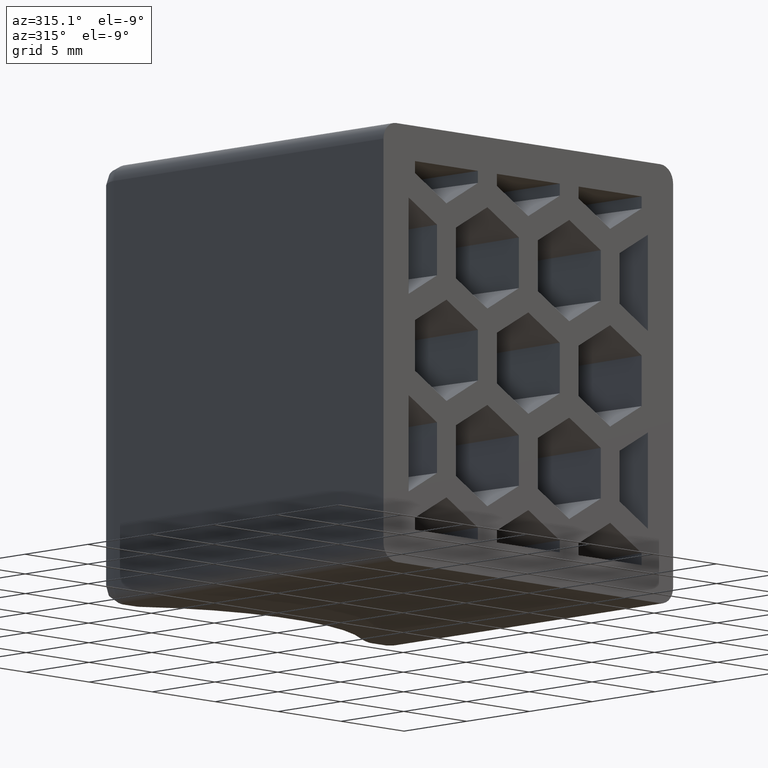
[diagram: clean part render]
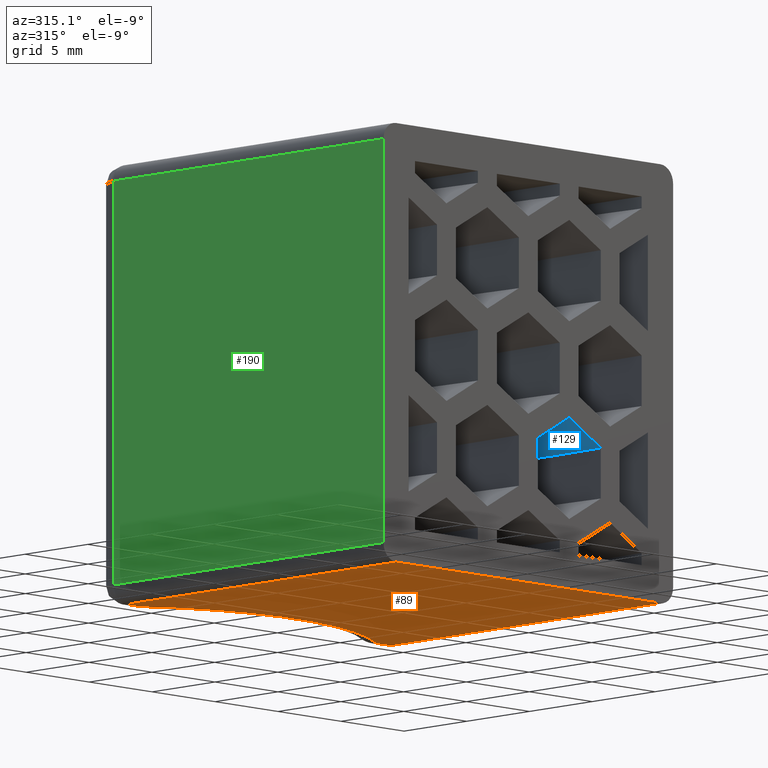
[diagram: same view with three faces highlighted in distinct colors, each labeled with its STEP entity id]
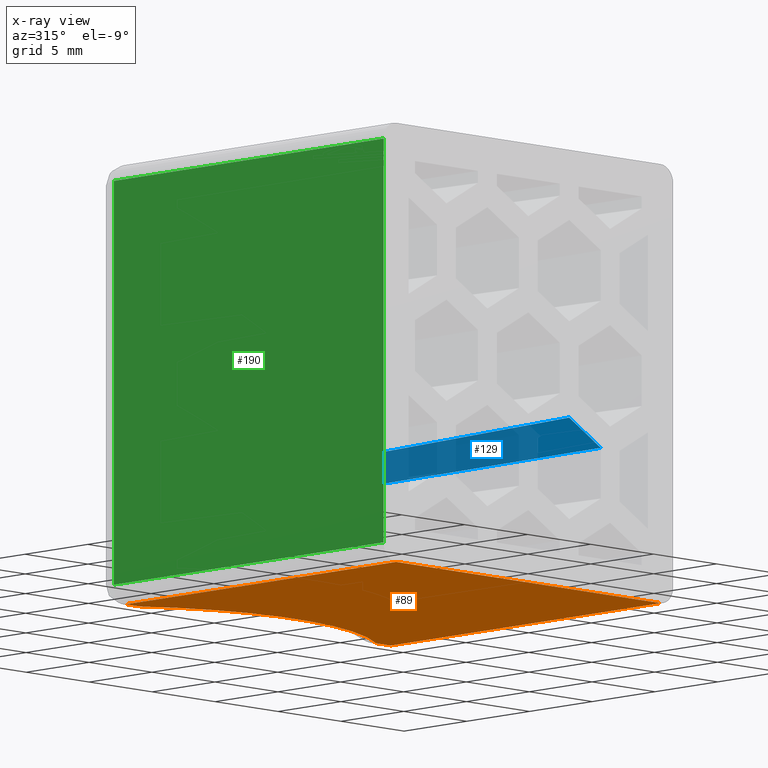
[diagram: x-ray of the same camera — body ghosted, the three highlighted faces saturated]
A machine part, auxiliary view with three faces highlighted in distinct colors.
The next image is the same camera in x-ray (body ghosted, the three faces saturated) — at least one of them is partly hidden behind the body in this view.
Their STEP definitions:

[orange] entity #89 — the highlighted planar face has unit normal (0, 0, -1).
#89 = ADVANCED_FACE( '', ( #294 ), #295, .T. );
#294 = FACE_OUTER_BOUND( '', #784, .T. );
#295 = PLANE( '', #785 );
#784 = EDGE_LOOP( '', ( #1708, #1709, #1710, #1711, #1712, #1713 ) );
#785 = AXIS2_PLACEMENT_3D( '', #1714, #1715, #1716 );
#1708 = ORIENTED_EDGE( '', *, *, #2950, .T. );
#1709 = ORIENTED_EDGE( '', *, *, #2948, .T. );
#1710 = ORIENTED_EDGE( '', *, *, #2951, .T. );
#1711 = ORIENTED_EDGE( '', *, *, #2952, .T. );
#1712 = ORIENTED_EDGE( '', *, *, #2953, .T. );
#1713 = ORIENTED_EDGE( '', *, *, #2884, .F. );
#1714 = CARTESIAN_POINT( '', ( 0.000000000000000, 34.5400000000000, -12.5000000000000 ) );
#1715 = DIRECTION( '', ( 0.000000000000000, 0.000000000000000, -1.00000000000000 ) );
#1716 = DIRECTION( '', ( 0.000000000000000, 1.00000000000000, 0.000000000000000 ) );
#2884 = EDGE_CURVE( '', #3380, #3381, #3382, .T. );
#2948 = EDGE_CURVE( '', #3493, #3497, #3499, .F. );
#2950 = EDGE_CURVE( '', #3380, #3493, #3501, .F. );
#2951 = EDGE_CURVE( '', #3497, #3502, #3503, .F. );
#2952 = EDGE_CURVE( '', #3502, #3504, #3505, .F. );
#2953 = EDGE_CURVE( '', #3504, #3381, #3506, .F. );
#3380 = VERTEX_POINT( '', #4140 );
#3381 = VERTEX_POINT( '', #4141 );
#3382 = LINE( '', #4142, #4143 );
#3493 = VERTEX_POINT( '', #4303 );
#3497 = VERTEX_POINT( '', #4307 );
#3499 = LINE( '', #4309, #4310 );
#3501 = LINE( '', #4313, #4314 );
#3502 = VERTEX_POINT( '', #4315 );
#3503 = CIRCLE( '', #4316, 16.0400000000000 );
#3504 = VERTEX_POINT( '', #4317 );
#3505 = LINE( '', #4318, #4319 );
#3506 = LINE( '', #4320, #4321 );
#4140 = CARTESIAN_POINT( '', ( -10.5000000000000, 0.000000000000000, -12.5000000000000 ) );
#4141 = CARTESIAN_POINT( '', ( 10.5000000000000, 0.000000000000000, -12.5000000000000 ) );
#4142 = CARTESIAN_POINT( '', ( -35.0000000000000, 0.000000000000000, -12.5000000000000 ) );
#4143 = VECTOR( '', #4954, 1000.00000000000 );
#4303 = CARTESIAN_POINT( '', ( -10.5000000000000, 21.5000000000000, -12.5000000000000 ) );
#4307 = CARTESIAN_POINT( '', ( -9.34023554306849, 21.5000000000000, -12.5000000000000 ) );
#4309 = CARTESIAN_POINT( '', ( 0.000000000000000, 21.5000000000000, -12.5000000000000 ) );
#4310 = VECTOR( '', #5046, 1000.00000000000 );
#4313 = CARTESIAN_POINT( '', ( -10.5000000000000, 34.5400000000000, -12.5000000000000 ) );
#4314 = VECTOR( '', #5048, 1000.00000000000 );
#4315 = CARTESIAN_POINT( '', ( 9.34023554306850, 21.5000000000000, -12.5000000000000 ) );
#4316 = AXIS2_PLACEMENT_3D( '', #5049, #5050, #5051 );
#4317 = CARTESIAN_POINT( '', ( 10.5000000000000, 21.5000000000000, -12.5000000000000 ) );
#4318 = CARTESIAN_POINT( '', ( 0.000000000000000, 21.5000000000000, -12.5000000000000 ) );
#4319 = VECTOR( '', #5052, 1000.00000000000 );
#4320 = CARTESIAN_POINT( '', ( 10.5000000000000, 34.5400000000000, -12.5000000000000 ) );
#4321 = VECTOR( '', #5053, 1000.00000000000 );
#4954 = DIRECTION( '', ( 1.00000000000000, 0.000000000000000, 0.000000000000000 ) );
#5046 = DIRECTION( '', ( -1.00000000000000, 0.000000000000000, 0.000000000000000 ) );
#5048 = DIRECTION( '', ( -6.07153216591882E-017, -1.00000000000000, 0.000000000000000 ) );
#5049 = CARTESIAN_POINT( '', ( 0.000000000000000, 34.5400000000000, -12.5000000000000 ) );
#5050 = DIRECTION( '', ( 0.000000000000000, 0.000000000000000, -1.00000000000000 ) );
#5051 = DIRECTION( '', ( -1.00000000000000, 0.000000000000000, 0.000000000000000 ) );
#5052 = DIRECTION( '', ( -1.00000000000000, 0.000000000000000, 0.000000000000000 ) );
#5053 = DIRECTION( '', ( 6.07153216591882E-017, 1.00000000000000, 0.000000000000000 ) );

[blue] entity #129 — the highlighted planar face has unit normal (0.4999, 0.0175, 0.8659).
#129 = ADVANCED_FACE( '', ( #374 ), #375, .F. );
#374 = FACE_OUTER_BOUND( '', #996, .T. );
#375 = PLANE( '', #997 );
#996 = EDGE_LOOP( '', ( #1989, #1990, #1991, #1992 ) );
#997 = AXIS2_PLACEMENT_3D( '', #1993, #1994, #1995 );
#1989 = ORIENTED_EDGE( '', *, *, #3046, .T. );
#1990 = ORIENTED_EDGE( '', *, *, #2842, .F. );
#1991 = ORIENTED_EDGE( '', *, *, #3047, .F. );
#1992 = ORIENTED_EDGE( '', *, *, #2982, .F. );
#1993 = CARTESIAN_POINT( '', ( 0.875000000000002, 0.000000000000000, -1.37120688932536 ) );
#1994 = DIRECTION( '', ( 0.499923847578195, 0.0174524064372835, 0.865893503920754 ) );
#1995 = DIRECTION( '', ( 0.866025403784439, 0.000000000000000, -0.500000000000000 ) );
#2842 = EDGE_CURVE( '', #3296, #3297, #3298, .F. );
#2982 = EDGE_CURVE( '', #3550, #3552, #3553, .F. );
#3046 = EDGE_CURVE( '', #3550, #3297, #3651, .T. );
#3047 = EDGE_CURVE( '', #3552, #3296, #3652, .T. );
#3296 = VERTEX_POINT( '', #4014 );
#3297 = VERTEX_POINT( '', #4015 );
#3298 = LINE( '', #4016, #4017 );
#3550 = VERTEX_POINT( '', #4377 );
#3552 = VERTEX_POINT( '', #4380 );
#3553 = ELLIPSE( '', #4381, 20.2565326112035, 17.5400000000000 );
#3651 = LINE( '', #4526, #4527 );
#3652 = LINE( '', #4528, #4529 );
#4014 = CARTESIAN_POINT( '', ( 3.25000000000000, 0.000000000000000, -2.74241377865072 ) );
#4015 = CARTESIAN_POINT( '', ( 5.75000000000000, 0.000000000000000, -4.18578945162478 ) );
#4016 = CARTESIAN_POINT( '', ( 4.50000000000000, 0.000000000000000, -3.46410161513775 ) );
#4017 = VECTOR( '', #4912, 1000.00000000000 );
#4377 = CARTESIAN_POINT( '', ( 5.43817688782424, 17.8643341321333, -4.36582060937901 ) );
#4380 = CARTESIAN_POINT( '', ( 3.25000000000000, 17.3037272010449, -3.09117685242954 ) );
#4381 = AXIS2_PLACEMENT_3D( '', #5112, #5113, #5114 );
#4526 = CARTESIAN_POINT( '', ( 5.75098980560016, -0.0567059248553492, -4.18521798709509 ) );
#4527 = VECTOR( '', #5210, 1000.00000000000 );
#4528 = CARTESIAN_POINT( '', ( 3.25000000000000, -0.0276259633910717, -2.74185696705768 ) );
#4529 = VECTOR( '', #5211, 1000.00000000000 );
#4912 = DIRECTION( '', ( -0.866025403784439, 0.000000000000000, 0.500000000000000 ) );
#5112 = CARTESIAN_POINT( '', ( 0.000000000000000, 34.5400000000000, -1.56219198271623 ) );
#5113 = DIRECTION( '', ( 0.499923847578195, 0.0174524064372835, 0.865893503920754 ) );
#5114 = DIRECTION( '', ( -0.865366346075250, -0.0302100515148758, 0.500228387706894 ) );
#5210 = DIRECTION( '', ( 0.0174515205435363, -0.999796942337605, 0.0100756400835790 ) );
#5211 = DIRECTION( '', ( 3.00523943436880E-018, -0.999796942337605, 0.0201512801671579 ) );

[green] entity #190 — the highlighted planar face has unit normal (-1, 0, 0).
#190 = ADVANCED_FACE( '', ( #496 ), #497, .T. );
#496 = FACE_OUTER_BOUND( '', #1118, .T. );
#497 = PLANE( '', #1119 );
#1118 = EDGE_LOOP( '', ( #2416, #2417, #2418, #2419 ) );
#1119 = AXIS2_PLACEMENT_3D( '', #2420, #2421, #2422 );
#2416 = ORIENTED_EDGE( '', *, *, #2970, .T. );
#2417 = ORIENTED_EDGE( '', *, *, #2944, .T. );
#2418 = ORIENTED_EDGE( '', *, *, #2967, .T. );
#2419 = ORIENTED_EDGE( '', *, *, #2890, .F. );
#2420 = CARTESIAN_POINT( '', ( -11.5000000000000, 23.0000000000000, -12.5000000000000 ) );
#2421 = DIRECTION( '', ( -1.00000000000000, 6.07153216591882E-017, 0.000000000000000 ) );
#2422 = DIRECTION( '', ( 6.07153216591882E-017, 1.00000000000000, 0.000000000000000 ) );
#2890 = EDGE_CURVE( '', #3391, #3393, #3394, .T. );
#2944 = EDGE_CURVE( '', #3485, #3490, #3492, .F. );
#2967 = EDGE_CURVE( '', #3490, #3393, #3525, .T. );
#2970 = EDGE_CURVE( '', #3391, #3485, #3529, .F. );
#3391 = VERTEX_POINT( '', #4154 );
#3393 = VERTEX_POINT( '', #4156 );
#3394 = LINE( '', #4157, #4158 );
#3485 = VERTEX_POINT( '', #4293 );
#3490 = VERTEX_POINT( '', #4299 );
#3492 = LINE( '', #4301, #4302 );
#3525 = LINE( '', #4344, #4345 );
#3529 = LINE( '', #4350, #4351 );
#4154 = CARTESIAN_POINT( '', ( -11.5000000000000, 0.000000000000000, 11.5000000000000 ) );
#4156 = CARTESIAN_POINT( '', ( -11.5000000000000, 6.93889390390723E-015, -11.5000000000000 ) );
#4157 = CARTESIAN_POINT( '', ( -11.5000000000000, 0.000000000000000, -12.5000000000000 ) );
#4158 = VECTOR( '', #4966, 1000.00000000000 );
#4293 = CARTESIAN_POINT( '', ( -11.5000000000000, 21.5000000000000, 11.5000000000000 ) );
#4299 = CARTESIAN_POINT( '', ( -11.5000000000000, 21.5000000000000, -11.5000000000000 ) );
#4301 = CARTESIAN_POINT( '', ( -11.5000000000000, 21.5000000000000, -12.5000000000000 ) );
#4302 = VECTOR( '', #5036, 1000.00000000000 );
#4344 = CARTESIAN_POINT( '', ( -11.5000000000000, 23.0000000000000, -11.5000000000000 ) );
#4345 = VECTOR( '', #5085, 1000.00000000000 );
#4350 = CARTESIAN_POINT( '', ( -11.5000000000000, 23.0000000000000, 11.5000000000000 ) );
#4351 = VECTOR( '', #5090, 1000.00000000000 );
#4966 = DIRECTION( '', ( 0.000000000000000, 0.000000000000000, -1.00000000000000 ) );
#5036 = DIRECTION( '', ( 0.000000000000000, 0.000000000000000, 1.00000000000000 ) );
#5085 = DIRECTION( '', ( -6.07153216591882E-017, -1.00000000000000, 0.000000000000000 ) );
#5090 = DIRECTION( '', ( -6.07153216591882E-017, -1.00000000000000, 0.000000000000000 ) );